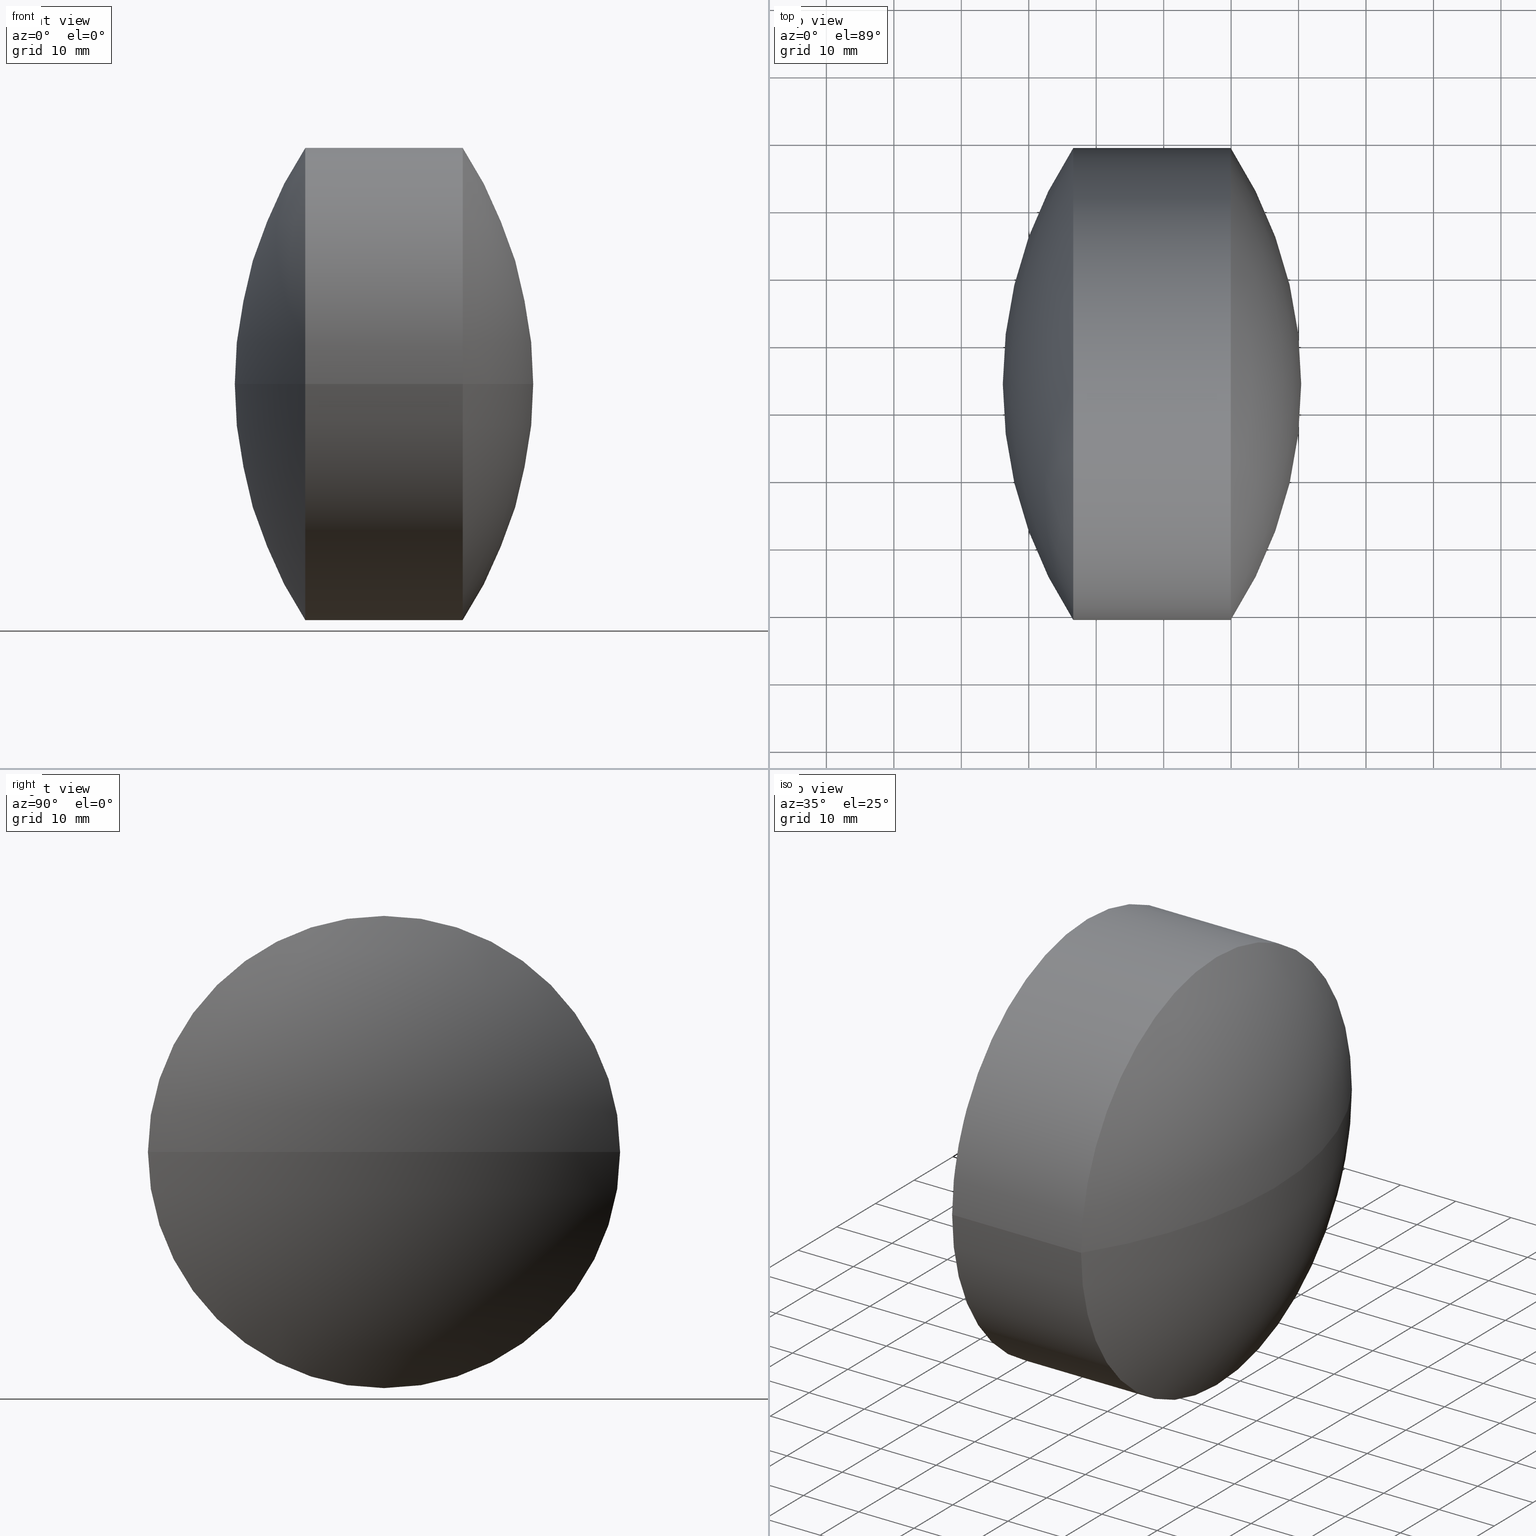
[diagram: canonical four-view strip — front | top / right | iso, engineering-drawing reading convention]
A machine part, canonical four-view strip (front | top / right | iso — engineering-drawing reading convention). The complete STEP part file that produces these views, byte-faithful:
ISO-10303-21;
HEADER;
FILE_DESCRIPTION (( 'STEP AP203' ),
    '1' );
FILE_NAME ('110002.STEP',
    '2019-06-24T02:08:34',
    ( '' ),
    ( '' ),
    'SwSTEP 2.0',
    'SolidWorks 2016',
    '' );
FILE_SCHEMA (( 'CONFIG_CONTROL_DESIGN' ));
ENDSEC;

DATA;
#1 = CIRCLE ( 'NONE', #280, 63.82125822329528800 ) ;
#2 = CC_DESIGN_PERSON_AND_ORGANIZATION_ASSIGNMENT ( #140, #82, ( #47 ) ) ;
#3 = COORDINATED_UNIVERSAL_TIME_OFFSET ( 8, 0, .AHEAD. ) ;
#4 = FACE_OUTER_BOUND ( 'NONE', #190, .T. ) ;
#5 = COORDINATED_UNIVERSAL_TIME_OFFSET ( 8, 0, .AHEAD. ) ;
#6 = DIRECTION ( 'NONE',  ( 1.739581850205384900E-015, 1.000000000000000000, 0.0000000000000000000 ) ) ;
#7 = CARTESIAN_POINT ( 'NONE',  ( 226.6040127648179500, 133.9814138434225900, 0.0000000000000000000 ) ) ;
#8 = PERSON_AND_ORGANIZATION_ROLE ( 'classification_officer' ) ;
#9 = PERSON_AND_ORGANIZATION ( #151, #197 ) ;
#10 = DIRECTION ( 'NONE',  ( 1.000000000000000000, 0.0000000000000000000, 0.0000000000000000000 ) ) ;
#11 = SHAPE_DEFINITION_REPRESENTATION ( #172, #68 ) ;
#12 = ORIENTED_EDGE ( 'NONE', *, *, #199, .F. ) ;
#13 =( LENGTH_UNIT ( ) NAMED_UNIT ( * ) SI_UNIT ( .MILLI., .METRE. ) );
#14 = DIRECTION ( 'NONE',  ( 1.739581850205358500E-015, 1.000000000000000000, 0.0000000000000000000 ) ) ;
#15 = CALENDAR_DATE ( 2019, 24, 6 ) ;
#16 = APPROVAL ( #37, 'δָ��' ) ;
#17 = EDGE_LOOP ( 'NONE', ( #267, #28, #12 ) ) ;
#18 = AXIS2_PLACEMENT_3D ( 'NONE', #131, #103, #158 ) ;
#19 = DATE_TIME_ROLE ( 'creation_date' ) ;
#20 = LOCAL_TIME ( 10, 8, 34.00000000000000000, #130 ) ;
#21 = VERTEX_POINT ( 'NONE', #152 ) ;
#22 = SPHERICAL_SURFACE ( 'NONE', #169, 63.82125822329626200 ) ;
#23 = DATE_AND_TIME ( #170, #216 ) ;
#24 = EDGE_LOOP ( 'NONE', ( #208, #97, #81 ) ) ;
#25 = CC_DESIGN_PERSON_AND_ORGANIZATION_ASSIGNMENT ( #122, #86, ( #270 ) ) ;
#26 = FACE_OUTER_BOUND ( 'NONE', #228, .T. ) ;
#27 = PERSON_AND_ORGANIZATION ( #151, #197 ) ;
#28 = ORIENTED_EDGE ( 'NONE', *, *, #180, .T. ) ;
#29 = DIRECTION ( 'NONE',  ( -1.000000000000000000, 1.772925823926328100E-015, -0.0000000000000000000 ) ) ;
#30 = CC_DESIGN_APPROVAL ( #16, ( #259 ) ) ;
#31 = DIRECTION ( 'NONE',  ( -1.000000000000000000, 1.772925823926328100E-015, -0.0000000000000000000 ) ) ;
#32 = PRODUCT_DEFINITION_FORMATION_WITH_SPECIFIED_SOURCE ( '�κ�', '', #153, .NOT_KNOWN. ) ;
#33 = CARTESIAN_POINT ( 'NONE',  ( 198.4294383779661900, 98.98141384342258700, 0.0000000000000000000 ) ) ;
#34 = PERSON_AND_ORGANIZATION ( #151, #197 ) ;
#35 = EDGE_CURVE ( 'NONE', #213, #155, #304, .T. ) ;
#36 = CARTESIAN_POINT ( 'NONE',  ( 279.9721024927130800, 133.9814138434225000, 0.0000000000000000000 ) ) ;
#37 = APPROVAL_STATUS ( 'not_yet_approved' ) ;
#38 = SECURITY_CLASSIFICATION ( '', '', #154 ) ;
#39 = FACE_OUTER_BOUND ( 'NONE', #142, .T. ) ;
#40 = APPROVAL_STATUS ( 'not_yet_approved' ) ;
#41 = COORDINATED_UNIVERSAL_TIME_OFFSET ( 8, 0, .AHEAD. ) ;
#42 = EDGE_CURVE ( 'NONE', #155, #67, #198, .T. ) ;
#43 = APPROVAL_DATE_TIME ( #111, #16 ) ;
#44 = CC_DESIGN_DATE_AND_TIME_ASSIGNMENT ( #117, #58, ( #259 ) ) ;
#45 = DATE_AND_TIME ( #72, #261 ) ;
#46 = AXIS2_PLACEMENT_3D ( 'NONE', #171, #150, #290 ) ;
#47 = PRODUCT ( '110002', '110002', '', ( #278 ) ) ;
#48 = PERSON_AND_ORGANIZATION ( #151, #197 ) ;
#49 = DIRECTION ( 'NONE',  ( 1.739581850205384900E-015, 1.000000000000000000, 0.0000000000000000000 ) ) ;
#50 = CARTESIAN_POINT ( 'NONE',  ( 226.6040127648179500, 133.9814138434225900, 0.0000000000000000000 ) ) ;
#51 = CARTESIAN_POINT ( 'NONE',  ( 196.5691230369240500, 133.9814138434226400, 0.0000000000000000000 ) ) ;
#52 = EDGE_CURVE ( 'NONE', #217, #21, #179, .T. ) ;
#53 = APPROVAL_STATUS ( 'not_yet_approved' ) ;
#54 = DIRECTION ( 'NONE',  ( 0.0000000000000000000, 0.0000000000000000000, 1.000000000000000000 ) ) ;
#55 = ORIENTED_EDGE ( 'NONE', *, *, #199, .T. ) ;
#56 = CARTESIAN_POINT ( 'NONE',  ( 0.0000000000000000000, 0.0000000000000000000, 0.0000000000000000000 ) ) ;
#57 = CC_DESIGN_PERSON_AND_ORGANIZATION_ASSIGNMENT ( #248, #62, ( #32 ) ) ;
#58 = DATE_TIME_ROLE ( 'creation_date' ) ;
#59 = CALENDAR_DATE ( 2019, 24, 6 ) ;
#60 = AXIS2_PLACEMENT_3D ( 'NONE', #242, #266, #220 ) ;
#61 = ADVANCED_FACE ( 'NONE', ( #257 ), #237, .T. ) ;
#62 = PERSON_AND_ORGANIZATION_ROLE ( 'creator' ) ;
#63 = VECTOR ( 'NONE', #201, 1000.000000000000000 ) ;
#64 = CC_DESIGN_PERSON_AND_ORGANIZATION_ASSIGNMENT ( #48, #294, ( #259 ) ) ;
#65 = APPROVAL ( #40, 'δָ��' ) ;
#66 = DATE_AND_TIME ( #100, #167 ) ;
#67 = VERTEX_POINT ( 'NONE', #243 ) ;
#68 = ADVANCED_BREP_SHAPE_REPRESENTATION ( '110002', ( #161, #73 ), #211 ) ;
#69 = AXIS2_PLACEMENT_3D ( 'NONE', #275, #296, #297 ) ;
#70 = PERSON_AND_ORGANIZATION ( #151, #197 ) ;
#71 = LINE ( 'NONE', #241, #63 ) ;
#72 = CALENDAR_DATE ( 2019, 24, 6 ) ;
#73 = AXIS2_PLACEMENT_3D ( 'NONE', #222, #54, #78 ) ;
#74 = ORIENTED_EDGE ( 'NONE', *, *, #93, .T. ) ;
#75 = DATE_AND_TIME ( #144, #277 ) ;
#76 = ORIENTED_EDGE ( 'NONE', *, *, #93, .F. ) ;
#77 = DIRECTION ( 'NONE',  ( 2.171207935397061500E-031, 1.224646799147353200E-016, -1.000000000000000000 ) ) ;
#78 = DIRECTION ( 'NONE',  ( 1.000000000000000000, 0.0000000000000000000, 0.0000000000000000000 ) ) ;
#79 = PERSON_AND_ORGANIZATION ( #151, #197 ) ;
#80 = PRODUCT_DEFINITION ( 'δ֪', '', #32, #119 ) ;
#81 = ORIENTED_EDGE ( 'NONE', *, *, #42, .F. ) ;
#82 = PERSON_AND_ORGANIZATION_ROLE ( 'design_owner' ) ;
#83 = FACE_OUTER_BOUND ( 'NONE', #24, .T. ) ;
#84 = AXIS2_PLACEMENT_3D ( 'NONE', #50, #251, #271 ) ;
#85 = DIRECTION ( 'NONE',  ( 0.0000000000000000000, 0.0000000000000000000, 1.000000000000000000 ) ) ;
#86 = PERSON_AND_ORGANIZATION_ROLE ( 'design_supplier' ) ;
#87 = ORIENTED_EDGE ( 'NONE', *, *, #52, .T. ) ;
#88 = APPROVAL_STATUS ( 'not_yet_approved' ) ;
#89 = PRODUCT_DEFINITION_SHAPE ( 'NONE', 'NONE',  #259 ) ;
#90 = LOCAL_TIME ( 10, 8, 34.00000000000000000, #41 ) ;
#91 = CC_DESIGN_PERSON_AND_ORGANIZATION_ASSIGNMENT ( #258, #8, ( #38 ) ) ;
#92 = CLOSED_SHELL ( 'NONE', ( #206, #112, #61, #231, #254, #182 ) ) ;
#93 = EDGE_CURVE ( 'NONE', #67, #155, #189, .T. ) ;
#94 = APPROVAL_PERSON_ORGANIZATION ( #9, #16, #204 ) ;
#95 = DATE_AND_TIME ( #15, #252 ) ;
#96 = AXIS2_PLACEMENT_3D ( 'NONE', #36, #202, #10 ) ;
#97 = ORIENTED_EDGE ( 'NONE', *, *, #126, .T. ) ;
#98 = ORIENTED_EDGE ( 'NONE', *, *, #246, .T. ) ;
#99 = DIRECTION ( 'NONE',  ( -1.000000000000000000, 1.772925823926328100E-015, -0.0000000000000000000 ) ) ;
#100 = CALENDAR_DATE ( 2019, 24, 6 ) ;
#101 = CIRCLE ( 'NONE', #96, 63.82125822329626200 ) ;
#102 = APPLICATION_PROTOCOL_DEFINITION ( 'international standard', 'config_control_design', 1994, #227 ) ;
#103 = DIRECTION ( 'NONE',  ( -1.000000000000000000, 1.772925823926328100E-015, -0.0000000000000000000 ) ) ;
#104 = COORDINATED_UNIVERSAL_TIME_OFFSET ( 8, 0, .AHEAD. ) ;
#105 = APPROVAL_ROLE ( '' ) ;
#106 = PRODUCT_RELATED_PRODUCT_CATEGORY ( 'detail', '', ( #47 ) ) ;
#107 = ORIENTED_EDGE ( 'NONE', *, *, #35, .T. ) ;
#108 = CARTESIAN_POINT ( 'NONE',  ( 198.4294383779662500, 133.9814138434226400, 0.0000000000000000000 ) ) ;
#109 = CC_DESIGN_DATE_AND_TIME_ASSIGNMENT ( #136, #176, ( #38 ) ) ;
#110 = PERSON_AND_ORGANIZATION_ROLE ( 'creator' ) ;
#111 = DATE_AND_TIME ( #232, #240 ) ;
#112 = ADVANCED_FACE ( 'NONE', ( #4 ), #255, .T. ) ;
#113 = APPROVAL_ROLE ( '' ) ;
#114 = APPROVAL ( #230, 'δָ��' ) ;
#115 = PERSON_AND_ORGANIZATION ( #151, #197 ) ;
#116 = SECURITY_CLASSIFICATION_LEVEL ( 'unclassified' ) ;
#117 = DATE_AND_TIME ( #188, #253 ) ;
#118 = COORDINATED_UNIVERSAL_TIME_OFFSET ( 8, 0, .AHEAD. ) ;
#119 = DESIGN_CONTEXT ( 'detailed design', #224, 'design' ) ;
#120 = CIRCLE ( 'NONE', #84, 35.00000000000002800 ) ;
#121 = APPROVAL ( #139, 'δָ��' ) ;
#122 = PERSON_AND_ORGANIZATION ( #151, #197 ) ;
#123 = CC_DESIGN_PERSON_AND_ORGANIZATION_ASSIGNMENT ( #27, #110, ( #80 ) ) ;
#124 = CIRCLE ( 'NONE', #69, 63.82125822329626200 ) ;
#125 = CARTESIAN_POINT ( 'NONE',  ( 216.1508442694168400, 133.9814138434226200, 0.0000000000000000000 ) ) ;
#126 = EDGE_CURVE ( 'NONE', #213, #67, #1, .T. ) ;
#127 = APPLICATION_PROTOCOL_DEFINITION ( 'international standard', 'config_control_design', 1994, #247 ) ;
#128 = DIRECTION ( 'NONE',  ( 0.0000000000000000000, 0.0000000000000000000, 1.000000000000000000 ) ) ;
#129 =( NAMED_UNIT ( * ) PLANE_ANGLE_UNIT ( ) SI_UNIT ( $, .RADIAN. ) );
#130 = COORDINATED_UNIVERSAL_TIME_OFFSET ( 8, 0, .AHEAD. ) ;
#131 = CARTESIAN_POINT ( 'NONE',  ( 198.4294383779662500, 133.9814138434226400, 0.0000000000000000000 ) ) ;
#132 = ORIENTED_EDGE ( 'NONE', *, *, #164, .T. ) ;
#133 = PERSON_AND_ORGANIZATION_ROLE ( 'creator' ) ;
#134 = AXIS2_PLACEMENT_3D ( 'NONE', #108, #31, #299 ) ;
#135 = CARTESIAN_POINT ( 'NONE',  ( 196.5691230369240500, 133.9814138434226400, 0.0000000000000000000 ) ) ;
#136 = DATE_AND_TIME ( #192, #90 ) ;
#137 = PERSON_AND_ORGANIZATION_ROLE ( 'design_supplier' ) ;
#138 = PERSON_AND_ORGANIZATION ( #151, #197 ) ;
#139 = APPROVAL_STATUS ( 'not_yet_approved' ) ;
#140 = PERSON_AND_ORGANIZATION ( #151, #197 ) ;
#141 = AXIS2_PLACEMENT_3D ( 'NONE', #7, #99, #194 ) ;
#142 = EDGE_LOOP ( 'NONE', ( #260, #87, #55 ) ) ;
#143 = CC_DESIGN_SECURITY_CLASSIFICATION ( #244, ( #32 ) ) ;
#144 = CALENDAR_DATE ( 2019, 24, 6 ) ;
#145 = VERTEX_POINT ( 'NONE', #125 ) ;
#146 = CC_DESIGN_APPROVAL ( #295, ( #32 ) ) ;
#147 = FACE_OUTER_BOUND ( 'NONE', #186, .T. ) ;
#148 = APPROVAL_PERSON_ORGANIZATION ( #187, #268, #223 ) ;
#149 = ORIENTED_EDGE ( 'NONE', *, *, #246, .F. ) ;
#150 = DIRECTION ( 'NONE',  ( 0.0000000000000000000, 0.0000000000000000000, -1.000000000000000000 ) ) ;
#151 = PERSON ( 'δָ��', 'δָ��', 'δָ��', ('δָ��'), ('δָ��'), ('δָ��') ) ;
#152 = CARTESIAN_POINT ( 'NONE',  ( 226.6040127648180100, 168.9814138434225300, 0.0000000000000000000 ) ) ;
#153 = PRODUCT ( '110002', '110002', '', ( #274 ) ) ;
#154 = SECURITY_CLASSIFICATION_LEVEL ( 'unclassified' ) ;
#155 = VERTEX_POINT ( 'NONE', #218 ) ;
#156 = PERSON_AND_ORGANIZATION_ROLE ( 'design_owner' ) ;
#157 = SPHERICAL_SURFACE ( 'NONE', #215, 63.82125822329528800 ) ;
#158 = DIRECTION ( 'NONE',  ( -1.586032892321650300E-015, -1.000000000000000000, 0.0000000000000000000 ) ) ;
#159 = DIRECTION ( 'NONE',  ( 0.0000000000000000000, 0.0000000000000000000, -1.000000000000000000 ) ) ;
#160 = APPROVAL_DATE_TIME ( #23, #121 ) ;
#161 = MANIFOLD_SOLID_BREP ( '��ת1', #92 ) ;
#162 = APPLICATION_CONTEXT ( 'configuration controlled 3d designs of mechanical parts and assemblies' ) ;
#163 = ORIENTED_EDGE ( 'NONE', *, *, #126, .F. ) ;
#164 = EDGE_CURVE ( 'NONE', #67, #21, #71, .T. ) ;
#165 = APPLICATION_PROTOCOL_DEFINITION ( 'international standard', 'config_control_design', 1994, #224 ) ;
#166 = APPROVAL_DATE_TIME ( #287, #268 ) ;
#167 = LOCAL_TIME ( 10, 8, 34.00000000000000000, #272 ) ;
#168 = LINE ( 'NONE', #33, #209 ) ;
#169 = AXIS2_PLACEMENT_3D ( 'NONE', #195, #159, #14 ) ;
#170 = CALENDAR_DATE ( 2019, 24, 6 ) ;
#171 = CARTESIAN_POINT ( 'NONE',  ( 279.9721024927130800, 133.9814138434225000, 0.0000000000000000000 ) ) ;
#172 = PRODUCT_DEFINITION_SHAPE ( 'NONE', 'NONE',  #80 ) ;
#173 = APPROVAL_DATE_TIME ( #45, #295 ) ;
#174 = DIRECTION ( 'NONE',  ( 0.0000000000000000000, 0.0000000000000000000, -1.000000000000000000 ) ) ;
#175 = DIRECTION ( 'NONE',  ( -1.000000000000000000, 1.772925823926328100E-015, -0.0000000000000000000 ) ) ;
#176 = DATE_TIME_ROLE ( 'classification_date' ) ;
#177 = DIRECTION ( 'NONE',  ( 1.000000000000000000, 0.0000000000000000000, 0.0000000000000000000 ) ) ;
#178 = CARTESIAN_POINT ( 'NONE',  ( 226.6040127648179000, 98.98141384342262900, -4.286263797015731000E-015 ) ) ;
#179 = CIRCLE ( 'NONE', #141, 35.00000000000002800 ) ;
#180 = EDGE_CURVE ( 'NONE', #217, #145, #124, .T. ) ;
#181 = COORDINATED_UNIVERSAL_TIME_OFFSET ( 8, 0, .AHEAD. ) ;
#182 = ADVANCED_FACE ( 'NONE', ( #147 ), #250, .T. ) ;
#183 = CC_DESIGN_APPROVAL ( #121, ( #80 ) ) ;
#184 = DESIGN_CONTEXT ( 'detailed design', #247, 'design' ) ;
#185 = EDGE_CURVE ( 'NONE', #21, #217, #120, .T. ) ;
#186 = EDGE_LOOP ( 'NONE', ( #205, #74, #98, #212 ) ) ;
#187 = PERSON_AND_ORGANIZATION ( #151, #197 ) ;
#188 = CALENDAR_DATE ( 2019, 24, 6 ) ;
#189 = CIRCLE ( 'NONE', #191, 35.00000000000005700 ) ;
#190 = EDGE_LOOP ( 'NONE', ( #163, #107, #76 ) ) ;
#191 = AXIS2_PLACEMENT_3D ( 'NONE', #273, #29, #289 ) ;
#192 = CALENDAR_DATE ( 2019, 24, 6 ) ;
#193 = ORIENTED_EDGE ( 'NONE', *, *, #52, .F. ) ;
#194 = DIRECTION ( 'NONE',  ( -1.586032892321650900E-015, -1.000000000000000000, 0.0000000000000000000 ) ) ;
#195 = CARTESIAN_POINT ( 'NONE',  ( 279.9721024927130800, 133.9814138434225000, 0.0000000000000000000 ) ) ;
#196 = PRODUCT_RELATED_PRODUCT_CATEGORY ( 'detail', '', ( #153 ) ) ;
#197 = ORGANIZATION ( 'δָ��', 'δָ��', '' ) ;
#198 = CIRCLE ( 'NONE', #60, 35.00000000000005700 ) ;
#199 = EDGE_CURVE ( 'NONE', #21, #145, #101, .T. ) ;
#200 =( NAMED_UNIT ( * ) SI_UNIT ( $, .STERADIAN. ) SOLID_ANGLE_UNIT ( ) );
#201 = DIRECTION ( 'NONE',  ( -1.000000000000000000, 1.772925823926328100E-015, -0.0000000000000000000 ) ) ;
#202 = DIRECTION ( 'NONE',  ( 0.0000000000000000000, 0.0000000000000000000, 1.000000000000000000 ) ) ;
#203 = COORDINATED_UNIVERSAL_TIME_OFFSET ( 8, 0, .AHEAD. ) ;
#204 = APPROVAL_ROLE ( '' ) ;
#205 = ORIENTED_EDGE ( 'NONE', *, *, #164, .F. ) ;
#206 = ADVANCED_FACE ( 'NONE', ( #26 ), #283, .T. ) ;
#207 = AXIS2_PLACEMENT_3D ( 'NONE', #51, #77, #238 ) ;
#208 = ORIENTED_EDGE ( 'NONE', *, *, #35, .F. ) ;
#209 = VECTOR ( 'NONE', #175, 1000.000000000000000 ) ;
#210 = APPROVAL_PERSON_ORGANIZATION ( #285, #121, #236 ) ;
#211 =( GEOMETRIC_REPRESENTATION_CONTEXT ( 3 ) GLOBAL_UNCERTAINTY_ASSIGNED_CONTEXT ( ( #264 ) ) GLOBAL_UNIT_ASSIGNED_CONTEXT ( ( #13, #129, #200 ) ) REPRESENTATION_CONTEXT ( 'NONE', 'WORKASPACE' ) );
#212 = ORIENTED_EDGE ( 'NONE', *, *, #185, .F. ) ;
#213 = VERTEX_POINT ( 'NONE', #298 ) ;
#214 = PERSON_AND_ORGANIZATION ( #151, #197 ) ;
#215 = AXIS2_PLACEMENT_3D ( 'NONE', #135, #276, #6 ) ;
#216 = LOCAL_TIME ( 10, 8, 34.00000000000000000, #203 ) ;
#217 = VERTEX_POINT ( 'NONE', #178 ) ;
#218 = CARTESIAN_POINT ( 'NONE',  ( 249.9372127648178700, 98.98141384342245900, -4.286263797015745200E-015 ) ) ;
#219 = CC_DESIGN_APPROVAL ( #65, ( #244 ) ) ;
#220 = DIRECTION ( 'NONE',  ( -1.586032892321649700E-015, -1.000000000000000000, 0.0000000000000000000 ) ) ;
#221 = AXIS2_PLACEMENT_3D ( 'NONE', #292, #174, #49 ) ;
#222 = CARTESIAN_POINT ( 'NONE',  ( 0.0000000000000000000, 0.0000000000000000000, 0.0000000000000000000 ) ) ;
#223 = APPROVAL_ROLE ( '' ) ;
#224 = APPLICATION_CONTEXT ( 'configuration controlled 3d designs of mechanical parts and assemblies' ) ;
#225 = CC_DESIGN_DATE_AND_TIME_ASSIGNMENT ( #75, #19, ( #80 ) ) ;
#226 = APPROVAL_DATE_TIME ( #95, #114 ) ;
#227 = APPLICATION_CONTEXT ( 'configuration controlled 3d designs of mechanical parts and assemblies' ) ;
#228 = EDGE_LOOP ( 'NONE', ( #279, #132, #193, #149 ) ) ;
#229 = AXIS2_PLACEMENT_3D ( 'NONE', #56, #85, #300 ) ;
#230 = APPROVAL_STATUS ( 'not_yet_approved' ) ;
#231 = ADVANCED_FACE ( 'NONE', ( #39 ), #22, .T. ) ;
#232 = CALENDAR_DATE ( 2019, 24, 6 ) ;
#233 = DATE_AND_TIME ( #293, #20 ) ;
#234 = CC_DESIGN_DATE_AND_TIME_ASSIGNMENT ( #233, #284, ( #244 ) ) ;
#235 = PERSON_AND_ORGANIZATION_ROLE ( 'classification_officer' ) ;
#236 = APPROVAL_ROLE ( '' ) ;
#237 = SPHERICAL_SURFACE ( 'NONE', #46, 63.82125822329626200 ) ;
#238 = DIRECTION ( 'NONE',  ( 0.0000000000000000000, 1.000000000000000000, 1.224646799147353500E-016 ) ) ;
#239 = PERSON_AND_ORGANIZATION ( #151, #197 ) ;
#240 = LOCAL_TIME ( 10, 8, 34.00000000000000000, #269 ) ;
#241 = CARTESIAN_POINT ( 'NONE',  ( 198.4294383779663100, 168.9814138434227000, 4.286263797015741200E-015 ) ) ;
#242 = CARTESIAN_POINT ( 'NONE',  ( 249.9372127648179300, 133.9814138434225600, 0.0000000000000000000 ) ) ;
#243 = CARTESIAN_POINT ( 'NONE',  ( 249.9372127648179900, 168.9814138434226400, 0.0000000000000000000 ) ) ;
#244 = SECURITY_CLASSIFICATION ( '', '', #116 ) ;
#245 = CARTESIAN_POINT ( 'NONE',  ( 196.5691230369240500, 133.9814138434226400, 0.0000000000000000000 ) ) ;
#246 = EDGE_CURVE ( 'NONE', #155, #217, #168, .T. ) ;
#247 = APPLICATION_CONTEXT ( 'configuration controlled 3d designs of mechanical parts and assemblies' ) ;
#248 = PERSON_AND_ORGANIZATION ( #151, #197 ) ;
#249 = APPLICATION_PROTOCOL_DEFINITION ( 'international standard', 'config_control_design', 1994, #162 ) ;
#250 = CYLINDRICAL_SURFACE ( 'NONE', #18, 35.00000000000004300 ) ;
#251 = DIRECTION ( 'NONE',  ( -1.000000000000000000, 1.772925823926328100E-015, -0.0000000000000000000 ) ) ;
#252 = LOCAL_TIME ( 10, 8, 34.00000000000000000, #5 ) ;
#253 = LOCAL_TIME ( 10, 8, 34.00000000000000000, #118 ) ;
#254 = ADVANCED_FACE ( 'NONE', ( #83 ), #157, .T. ) ;
#255 = SPHERICAL_SURFACE ( 'NONE', #221, 63.82125822329528800 ) ;
#256 = APPROVAL_PERSON_ORGANIZATION ( #214, #65, #282 ) ;
#257 = FACE_OUTER_BOUND ( 'NONE', #17, .T. ) ;
#258 = PERSON_AND_ORGANIZATION ( #151, #197 ) ;
#259 = PRODUCT_DEFINITION ( 'δ֪', '', #270, #184 ) ;
#260 = ORIENTED_EDGE ( 'NONE', *, *, #180, .F. ) ;
#261 = LOCAL_TIME ( 10, 8, 34.00000000000000000, #181 ) ;
#262 = APPROVAL_DATE_TIME ( #66, #65 ) ;
#263 = APPROVAL_PERSON_ORGANIZATION ( #138, #114, #105 ) ;
#264 = UNCERTAINTY_MEASURE_WITH_UNIT (LENGTH_MEASURE( 1.000000000000000100E-005 ), #13, 'distance_accuracy_value', 'NONE');
#265 = LOCAL_TIME ( 10, 8, 34.00000000000000000, #104 ) ;
#266 = DIRECTION ( 'NONE',  ( -1.000000000000000000, 1.772925823926328100E-015, -0.0000000000000000000 ) ) ;
#267 = ORIENTED_EDGE ( 'NONE', *, *, #185, .T. ) ;
#268 = APPROVAL ( #53, 'δָ��' ) ;
#269 = COORDINATED_UNIVERSAL_TIME_OFFSET ( 8, 0, .AHEAD. ) ;
#270 = PRODUCT_DEFINITION_FORMATION_WITH_SPECIFIED_SOURCE ( '�κ�', '', #47, .NOT_KNOWN. ) ;
#271 = DIRECTION ( 'NONE',  ( -1.586032892321650900E-015, -1.000000000000000000, 0.0000000000000000000 ) ) ;
#272 = COORDINATED_UNIVERSAL_TIME_OFFSET ( 8, 0, .AHEAD. ) ;
#273 = CARTESIAN_POINT ( 'NONE',  ( 249.9372127648179300, 133.9814138434225600, 0.0000000000000000000 ) ) ;
#274 = MECHANICAL_CONTEXT ( 'NONE', #227, 'mechanical' ) ;
#275 = CARTESIAN_POINT ( 'NONE',  ( 279.9721024927130800, 133.9814138434225000, 0.0000000000000000000 ) ) ;
#276 = DIRECTION ( 'NONE',  ( 0.0000000000000000000, 0.0000000000000000000, -1.000000000000000000 ) ) ;
#277 = LOCAL_TIME ( 10, 8, 34.00000000000000000, #3 ) ;
#278 = MECHANICAL_CONTEXT ( 'NONE', #162, 'mechanical' ) ;
#279 = ORIENTED_EDGE ( 'NONE', *, *, #42, .T. ) ;
#280 = AXIS2_PLACEMENT_3D ( 'NONE', #245, #128, #177 ) ;
#281 = CC_DESIGN_APPROVAL ( #268, ( #38 ) ) ;
#282 = APPROVAL_ROLE ( '' ) ;
#283 = CYLINDRICAL_SURFACE ( 'NONE', #134, 35.00000000000004300 ) ;
#284 = DATE_TIME_ROLE ( 'classification_date' ) ;
#285 = PERSON_AND_ORGANIZATION ( #151, #197 ) ;
#286 = CC_DESIGN_APPROVAL ( #114, ( #270 ) ) ;
#287 = DATE_AND_TIME ( #59, #265 ) ;
#288 = CC_DESIGN_PERSON_AND_ORGANIZATION_ASSIGNMENT ( #79, #137, ( #32 ) ) ;
#289 = DIRECTION ( 'NONE',  ( -1.586032892321649700E-015, -1.000000000000000000, 0.0000000000000000000 ) ) ;
#290 = DIRECTION ( 'NONE',  ( 1.739581850205358500E-015, 1.000000000000000000, 0.0000000000000000000 ) ) ;
#291 = CC_DESIGN_PERSON_AND_ORGANIZATION_ASSIGNMENT ( #34, #156, ( #153 ) ) ;
#292 = CARTESIAN_POINT ( 'NONE',  ( 196.5691230369240500, 133.9814138434226400, 0.0000000000000000000 ) ) ;
#293 = CALENDAR_DATE ( 2019, 24, 6 ) ;
#294 = PERSON_AND_ORGANIZATION_ROLE ( 'creator' ) ;
#295 = APPROVAL ( #88, 'δָ��' ) ;
#296 = DIRECTION ( 'NONE',  ( 2.171207935397061500E-031, 1.224646799147353200E-016, -1.000000000000000000 ) ) ;
#297 = DIRECTION ( 'NONE',  ( 0.0000000000000000000, 1.000000000000000000, 1.224646799147353200E-016 ) ) ;
#298 = CARTESIAN_POINT ( 'NONE',  ( 260.3903812602193300, 133.9814138434225300, 0.0000000000000000000 ) ) ;
#299 = DIRECTION ( 'NONE',  ( -1.586032892321650300E-015, -1.000000000000000000, 0.0000000000000000000 ) ) ;
#300 = DIRECTION ( 'NONE',  ( 1.000000000000000000, 0.0000000000000000000, 0.0000000000000000000 ) ) ;
#301 = CC_DESIGN_SECURITY_CLASSIFICATION ( #38, ( #270 ) ) ;
#302 = CC_DESIGN_PERSON_AND_ORGANIZATION_ASSIGNMENT ( #239, #133, ( #270 ) ) ;
#303 = CC_DESIGN_PERSON_AND_ORGANIZATION_ASSIGNMENT ( #115, #235, ( #244 ) ) ;
#304 = CIRCLE ( 'NONE', #207, 63.82125822329528800 ) ;
#305 = APPROVAL_PERSON_ORGANIZATION ( #70, #295, #113 ) ;
ENDSEC;
END-ISO-10303-21;
